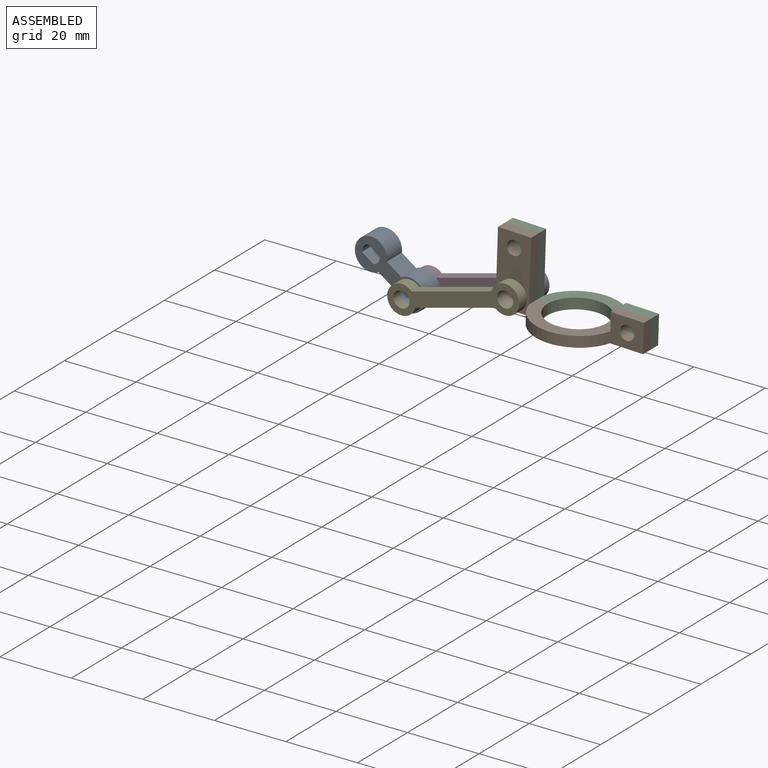
[diagram: assembled view]
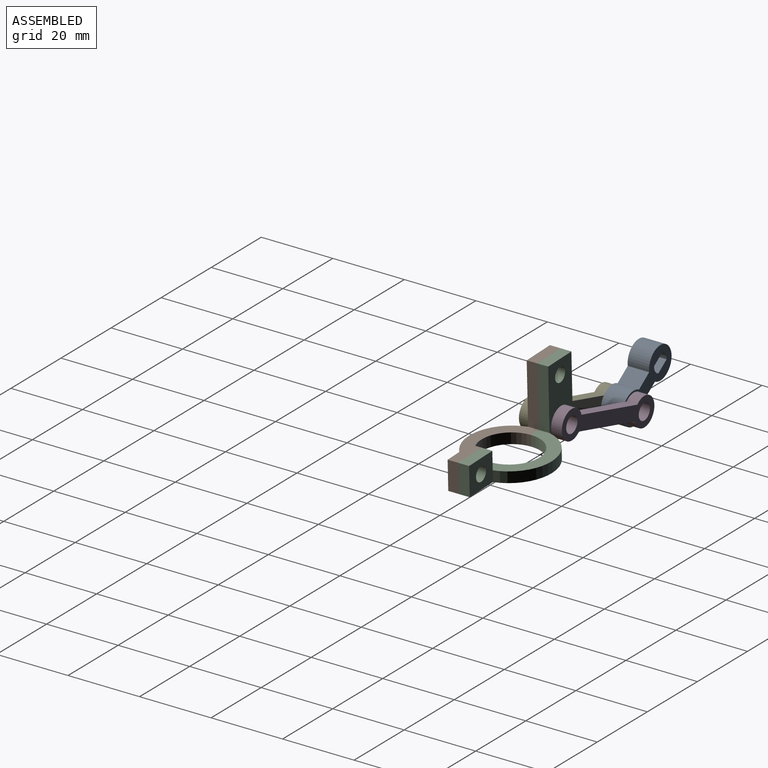
[diagram: assembled view, second angle]
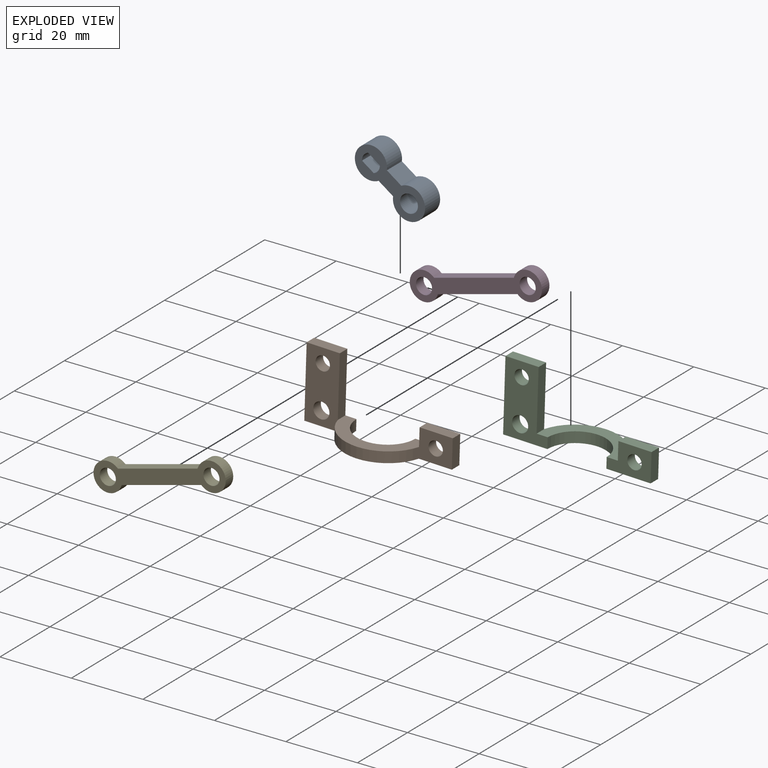
[diagram: exploded view]
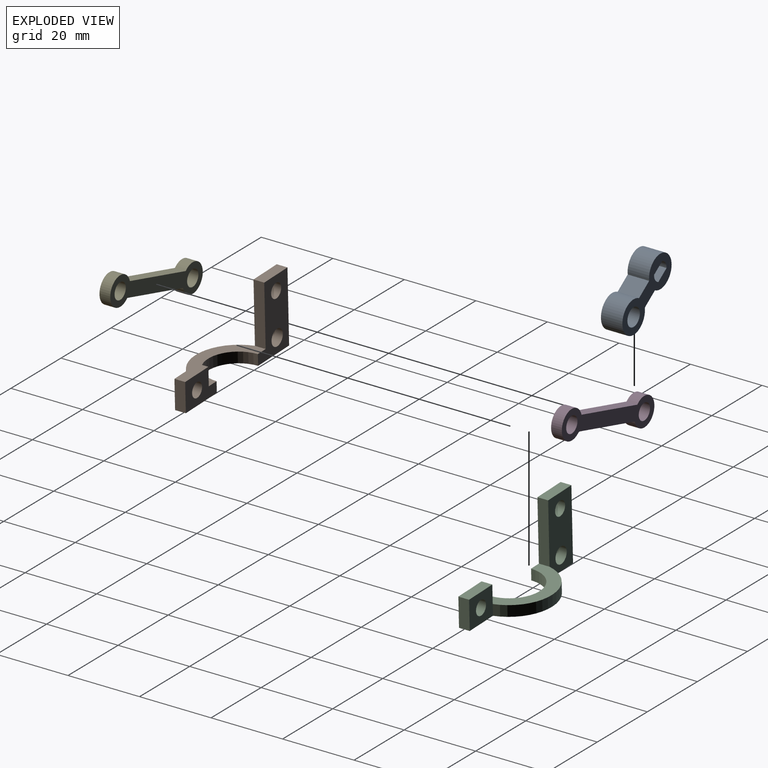
[diagram: exploded view, second angle]
ASSEMBLY  parts=5 mates=9
PART A: 11 faces, bbox 22x9x6 mm
  f0: cylinder r=4.5mm len=9mm, axis (0,0,-1), area 144.8mm2, adj f1,f2,f7,f8
  f1: plane 22x9mm, normal (0,0,1), area 110.8mm2, adj f0,f3,f4,f5,f6,f7,f8,f9
  f2: plane 22x9mm, normal (0,0,-1), area 110.8mm2, adj f0,f3,f4,f5,f6,f7,f8,f9
  f3: cylinder r=2.5mm len=6mm, axis (0,0,1), area 19.3mm2, adj f1,f2,f4,f6
  f4: plane 6x4mm, normal (0,1,0), area 24mm2, adj f1,f2,f3,f5
  f5: cylinder r=2.5mm len=6mm, axis (0,0,1), area 19.3mm2, adj f1,f2,f4,f6
  f6: plane 6x4mm, normal (0,-1,0), area 24mm2, adj f1,f2,f3,f5
  f7: plane 6x4.94mm, normal (0,1,0), area 29.6mm2, adj f0,f1,f2,f9
  f8: plane 6x4.94mm, normal (0,-1,0), area 29.6mm2, adj f0,f1,f2,f9
  f9: cylinder r=4.5mm len=9mm, axis (0,0,1), area 144.8mm2, adj f1,f2,f7,f8
  f10: cylinder r=2.5mm len=6mm, axis (0,0,1), area 94.2mm2, adj f1,f2
PART B: 17 faces, bbox 41.3x11.8x20 mm
  f0: plane 20x3mm, normal (-1,0,0), area 60mm2, adj f3,f10,f13,f15
  f1: plane 22.72x11.75mm, normal (0,0,1), area 108.4mm2, adj f2,f5,f6,f12,f15,f16
  f2: cylinder r=8.25mm len=16.5mm, axis (0,0,-1), area 77.8mm2, adj f1,f3,f15,f16
  f3: plane 41.28x11.75mm, normal (0,0,-1), area 164.1mm2, adj f0,f2,f4,f12,f13,f14,f15,f16
  f4: plane 8x3mm, normal (1,0,0), area 24mm2, adj f3,f7,f14,f16
  f5: plane 17x3mm, normal (1,0,0), area 51mm2, adj f1,f10,f13,f15
  f6: plane 5x3mm, normal (-1,0,0), area 15mm2, adj f1,f7,f14,f16
  f7: plane 9.28x3mm, normal (0,0,1), area 27.8mm2, adj f4,f6,f14,f16
  f8: cylinder r=2.25mm len=4.5mm, axis (0,-1,0), area 42.4mm2, adj f13,f15
  f9: cylinder r=2mm len=4mm, axis (0,-1,0), area 37.7mm2, adj f14,f16
  f10: plane 9.28x3mm, normal (0,0,1), area 27.8mm2, adj f0,f5,f13,f15
  f11: cylinder r=2mm len=4mm, axis (0,-1,0), area 37.7mm2, adj f13,f15
  f12: cylinder r=11.75mm len=22.72mm, axis (0,0,-1), area 92.5mm2, adj f1,f3,f13,f14
  f13: plane 20x9.28mm, normal (0,-1,0), area 157.1mm2, adj f0,f3,f5,f8,f10,f11,f12
  f14: plane 9.28x8mm, normal (0,-1,0), area 61.7mm2, adj f3,f4,f6,f7,f9,f12
  f15: plane 20x12.39mm, normal (0,1,0), area 166.4mm2, adj f0,f1,f2,f3,f5,f8,f10,f11
  f16: plane 12.39x8mm, normal (0,1,0), area 71mm2, adj f1,f2,f3,f4,f6,f7,f9
PART C: 17 faces, bbox 41.3x11.8x20 mm
  f0: plane 22.72x11.75mm, normal (0,0,1), area 108.4mm2, adj f1,f2,f3,f4,f10,f11
  f1: cylinder r=11.75mm len=22.72mm, axis (0,0,-1), area 92.5mm2, adj f0,f5,f6,f9
  f2: plane 20x12.39mm, normal (0,-1,0), area 166.4mm2, adj f0,f3,f5,f7,f10,f13,f15,f16
  f3: cylinder r=8.25mm len=16.5mm, axis (0,0,-1), area 77.8mm2, adj f0,f2,f4,f5
  f4: plane 12.39x8mm, normal (0,-1,0), area 71mm2, adj f0,f3,f5,f8,f11,f12,f14
  f5: plane 41.28x11.75mm, normal (0,0,-1), area 164.1mm2, adj f1,f2,f3,f4,f6,f7,f8,f9
  f6: plane 20x9.28mm, normal (0,1,0), area 157.1mm2, adj f1,f5,f7,f10,f13,f15,f16
  f7: plane 20x3mm, normal (-1,0,0), area 60mm2, adj f2,f5,f6,f15
  f8: plane 8x3mm, normal (1,0,0), area 24mm2, adj f4,f5,f9,f12
  f9: plane 9.28x8mm, normal (0,1,0), area 61.7mm2, adj f1,f5,f8,f11,f12,f14
  f10: plane 17x3mm, normal (1,0,0), area 51mm2, adj f0,f2,f6,f15
  f11: plane 5x3mm, normal (-1,0,0), area 15mm2, adj f0,f4,f9,f12
  f12: plane 9.28x3mm, normal (0,0,1), area 27.8mm2, adj f4,f8,f9,f11
  f13: cylinder r=2.25mm len=4.5mm, axis (0,-1,0), area 42.4mm2, adj f2,f6
  f14: cylinder r=2mm len=4mm, axis (0,-1,0), area 37.7mm2, adj f4,f9
  f15: plane 9.28x3mm, normal (0,0,1), area 27.8mm2, adj f2,f6,f7,f10
  f16: cylinder r=2mm len=4mm, axis (0,-1,0), area 37.7mm2, adj f2,f6
PART D: 8 faces, bbox 38x8x3 mm
  f0: cylinder r=4mm len=8mm, axis (0,0,-1), area 62.8mm2, adj f1,f2,f5,f6
  f1: plane 38x8mm, normal (0,0,1), area 158.1mm2, adj f0,f3,f4,f5,f6,f7
  f2: plane 38x8mm, normal (0,0,-1), area 158.1mm2, adj f0,f3,f4,f5,f6,f7
  f3: cylinder r=2.25mm len=4.5mm, axis (0,0,1), area 42.4mm2, adj f1,f2
  f4: cylinder r=4mm len=8mm, axis (0,0,1), area 62.8mm2, adj f1,f2,f5,f6
  f5: plane 23.07x3mm, normal (0,1,0), area 69.2mm2, adj f0,f1,f2,f4
  f6: plane 23.07x3mm, normal (0,-1,0), area 69.2mm2, adj f0,f1,f2,f4
  f7: cylinder r=2.25mm len=4.5mm, axis (0,0,1), area 42.4mm2, adj f1,f2
PART E: same geometry as D
PLACE A rot(axis=(-0.91,0.29,0.29),95.2deg) t=(-46.3,-22.79,-12.32)mm
PLACE B rot(axis=(0,1,0),1.9deg) t=(9.18,-19.79,-16.54)mm
PLACE C rot(axis=(0,1,0),1.9deg) t=(9.18,-19.79,-16.54)mm
PLACE D rot(axis=(0.98,-0.13,0.13),91deg) t=(-35.65,-13.79,-19.78)mm
PLACE E rot(axis=(-0.98,-0.13,-0.13),91deg) t=(-35.65,-25.79,-19.78)mm
MATE cylindrical E.f7 <-> B.f8  axis (0,1,0) through (-6.68,-22.79,-12.01)mm
MATE planar A.f1 <-> D.f1  axis (0,1,0) through (-41.25,-16.79,-15.86)mm
MATE cylindrical A.f9 <-> D.f3  axis (0,1,0) through (-35.65,-16.79,-19.78)mm
MATE planar E.f1 <-> A.f2  axis (0,1,0) through (-21.16,-22.79,-15.89)mm
MATE cylindrical C.f14 <-> B.f9  axis (0,-1,0) through (25.31,-19.79,-13.07)mm
MATE cylindrical C.f16 <-> B.f11  axis (0,-1,0) through (-6.28,-19.79,-0.02)mm
MATE cylindrical D.f7 <-> C.f13  axis (0,-1,0) through (-6.68,-16.79,-12.01)mm
MATE planar D.f1 <-> C.f6  axis (0,-1,0) through (-21.16,-16.79,-15.89)mm
MATE cylindrical E.f3 <-> A.f9  axis (0,1,0) through (-35.65,-22.79,-19.78)mm
